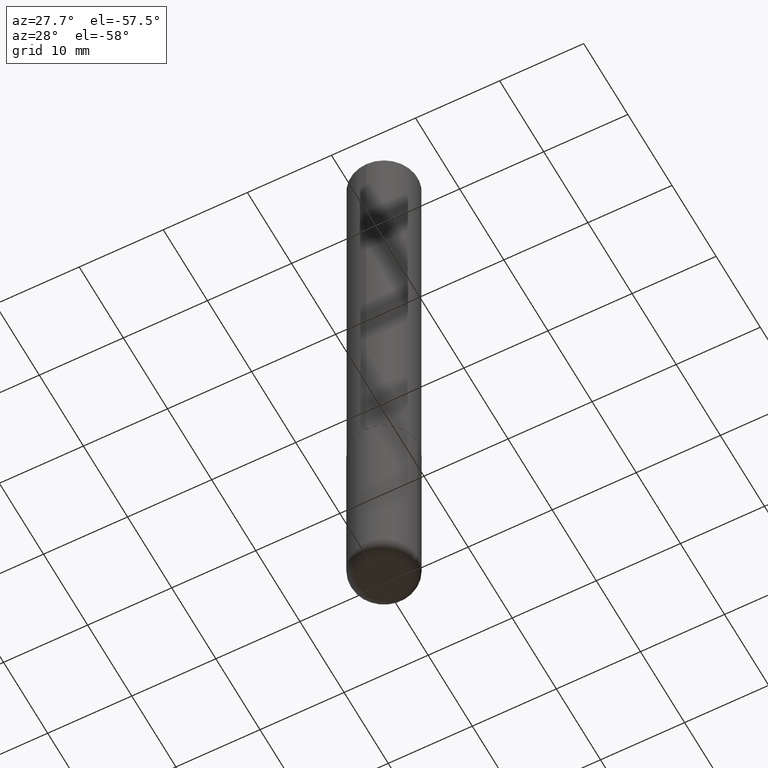
[diagram: clean part render]
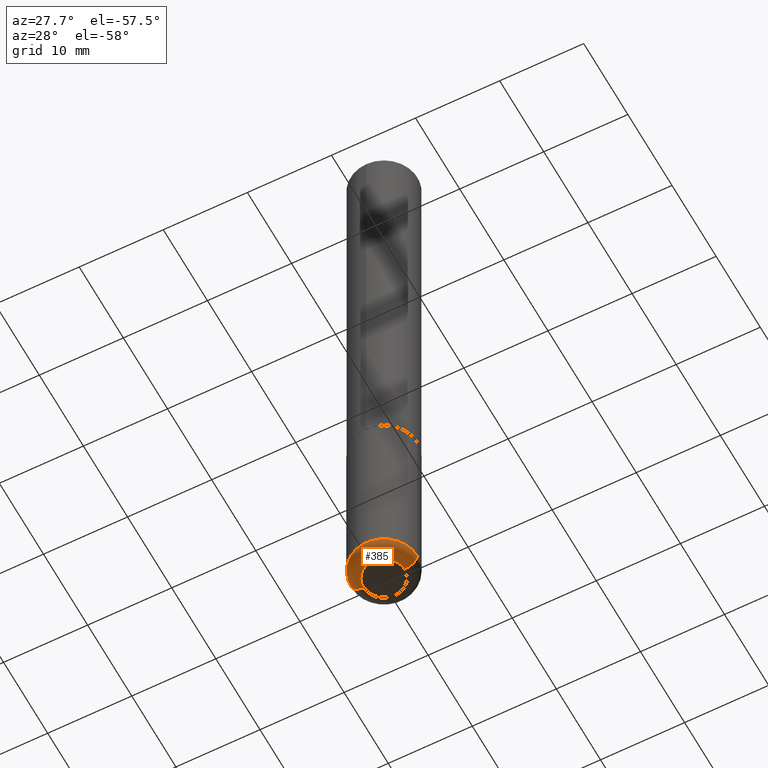
[diagram: same view with one face highlighted and labeled with its STEP entity id]
A machine part, auxiliary view. The second image highlights one B-rep face of the part: STEP entity #385.
In plain terms, the highlighted toroidal blend (fillet) surface has major radius 2.4447 mm and minor (blend) radius 1.524 mm.
Its self-contained STEP definition (entity closure, byte-faithful):
#10 = EDGE_CURVE ( 'NONE', #331, #301, #122, .T. ) ;
#16 = AXIS2_PLACEMENT_3D ( 'NONE', #272, #401, #80 ) ;
#18 = CARTESIAN_POINT ( 'NONE',  ( 0.09625000000000000222, -1.114655417425673968E-14, -3.000000000000000444 ) ) ;
#20 = DIRECTION ( 'NONE',  ( -2.445468806185136597E-29, 3.491481338843145583E-15, 1.000000000000000000 ) ) ;
#22 = ORIENTED_EDGE ( 'NONE', *, *, #295, .T. ) ;
#29 = CARTESIAN_POINT ( 'NONE',  ( 0.1562499999999999722, -1.135604305458732800E-14, -2.940000000000000391 ) ) ;
#31 = CIRCLE ( 'NONE', #16, 0.05999999999999994227 ) ;
#38 = EDGE_CURVE ( 'NONE', #117, #346, #353, .T. ) ;
#60 = CARTESIAN_POINT ( 'NONE',  ( 0.09625000000000000222, -1.093706529392615137E-14, -2.940000000000000391 ) ) ;
#75 = CARTESIAN_POINT ( 'NONE',  ( -0.09625000000000000222, -9.472639372467016689E-15, -3.000000000000000444 ) ) ;
#80 = DIRECTION ( 'NONE',  ( -1.000000000000000000, 7.105427357600997914E-15, 0.000000000000000000 ) ) ;
#100 = DIRECTION ( 'NONE',  ( -2.445468806185136597E-29, 3.491481338843145583E-15, 1.000000000000000000 ) ) ;
#117 = VERTEX_POINT ( 'NONE', #75 ) ;
#122 = CIRCLE ( 'NONE', #380, 0.1562500000000000000 ) ;
#133 = DIRECTION ( 'NONE',  ( 1.000000000000000000, -6.982962677686259611E-15, 0.000000000000000000 ) ) ;
#148 = DIRECTION ( 'NONE',  ( 1.000000000000000000, -6.982962677686265922E-15, 4.883557194083112340E-29 ) ) ;
#186 = CARTESIAN_POINT ( 'NONE',  ( -0.1562499999999999722, -9.154732111573693074E-15, -2.940000000000000391 ) ) ;
#191 = EDGE_LOOP ( 'NONE', ( #371, #402, #22, #404 ) ) ;
#195 = DIRECTION ( 'NONE',  ( -6.982962677686266711E-15, -1.000000000000000000, 3.491481338843145583E-15 ) ) ;
#204 = DIRECTION ( 'NONE',  ( -2.445468806185136597E-29, 3.491481338843145583E-15, 1.000000000000000000 ) ) ;
#226 = DIRECTION ( 'NONE',  ( 1.000000000000000000, -6.982962677686274599E-15, 0.000000000000000000 ) ) ;
#249 = CIRCLE ( 'NONE', #297, 0.05999999999999994227 ) ;
#272 = CARTESIAN_POINT ( 'NONE',  ( -0.09625000000000000222, -9.581057753029751986E-15, -2.940000000000000391 ) ) ;
#294 = DIRECTION ( 'NONE',  ( 1.000000000000000000, -6.982962677686262766E-15, 0.000000000000000000 ) ) ;
#295 = EDGE_CURVE ( 'NONE', #346, #301, #249, .T. ) ;
#297 = AXIS2_PLACEMENT_3D ( 'NONE', #60, #195, #226 ) ;
#301 = VERTEX_POINT ( 'NONE', #29 ) ;
#308 = CARTESIAN_POINT ( 'NONE',  ( 7.189678290184301639E-29, -1.026495513619884961E-14, -2.940000000000000391 ) ) ;
#331 = VERTEX_POINT ( 'NONE', #186 ) ;
#336 = FACE_OUTER_BOUND ( 'NONE', #191, .T. ) ;
#337 = CARTESIAN_POINT ( 'NONE',  ( 7.336406418555409790E-29, -1.047444401652943635E-14, -3.000000000000000444 ) ) ;
#346 = VERTEX_POINT ( 'NONE', #18 ) ;
#350 = TOROIDAL_SURFACE ( 'NONE', #390, 0.09625000000000000222, 0.05999999999999995615 ) ;
#353 = CIRCLE ( 'NONE', #363, 0.09625000000000000222 ) ;
#360 = CARTESIAN_POINT ( 'NONE',  ( 7.189678290184301639E-29, -1.026495513619884961E-14, -2.940000000000000391 ) ) ;
#362 = EDGE_CURVE ( 'NONE', #117, #331, #31, .T. ) ;
#363 = AXIS2_PLACEMENT_3D ( 'NONE', #337, #204, #133 ) ;
#371 = ORIENTED_EDGE ( 'NONE', *, *, #362, .F. ) ;
#380 = AXIS2_PLACEMENT_3D ( 'NONE', #360, #100, #294 ) ;
#385 = ADVANCED_FACE ( 'NONE', ( #336 ), #350, .T. ) ;
#390 = AXIS2_PLACEMENT_3D ( 'NONE', #308, #20, #148 ) ;
#401 = DIRECTION ( 'NONE',  ( 7.105427357601001859E-15, 1.000000000000000000, -3.491481338843145583E-15 ) ) ;
#402 = ORIENTED_EDGE ( 'NONE', *, *, #38, .T. ) ;
#404 = ORIENTED_EDGE ( 'NONE', *, *, #10, .F. ) ;